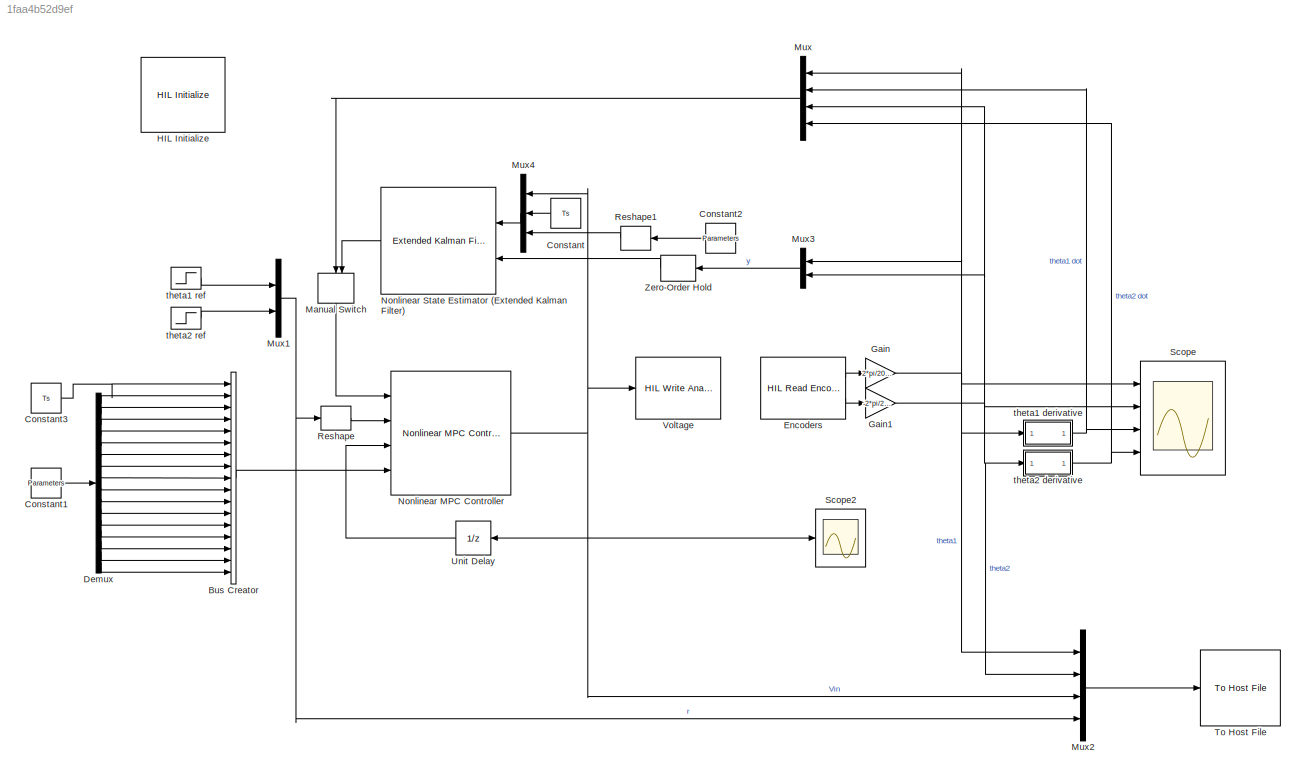
MODEL slx_1faa4b52d9ef
KIND model
CONFIG AbsTol = auto
CONFIG EnableMultiTasking = on
CONFIG FixedStep = 0.002
CONFIG MaxStep = auto
CONFIG MinStep = auto
CONFIG PostLoadFcn = qc_set_target_type(getConfigSet(bdroot, 'QUARC Default Target Configuration'));
CONFIG RelTol = 1e-3
CONFIG SampleTimeConstraint = Unconstrained
CONFIG Solver = ode1
CONFIG SolverName = ode1
CONFIG StartTime = 0.0
CONFIG StopTime = inf
BLOCK [BusCreator] Bus Creator
  DisplayOption = bar
  InheritFromInputs = on
  Inputs = 17
  NonVirtualBus = on
  OutDataTypeStr = Bus: customBusObject
  Ports = [17, 1]
BLOCK [Constant] Constant
  Value = Ts
BLOCK [Constant] Constant1
  Value = Parameters
BLOCK [Constant] Constant2
  Value = Parameters
BLOCK [Constant] Constant3
  Value = Ts
BLOCK [Demux] Demux
  DisplayOption = bar
  Outputs = 16
  Ports = [1, 16]
BLOCK [Reference] Encoders  REF=quarc_library/Data Acquisition/Generic/Timebases/HIL Read Encoder
Timebase
  AttributesFormatString = (%<object_name>)
  Ports = [0, 2]
  SourceBlock = quarc_library/Data Acquisition/Generic/Timebases/HIL Read Encoder\nTimebase
  SourceProductName = QUARC Targets
  SourceType = HIL Read Encoder Timebase
  UserDataPersistent = on
BLOCK [Gain] Gain
  Gain = 2*pi/2048
  OutDataTypeStr = Inherit: Inherit via internal rule
  ParamDataTypeStr = Inherit: Inherit via internal rule
  SaturateOnIntegerOverflow = off
BLOCK [Gain] Gain1
  Gain = -2*pi/2048
  OutDataTypeStr = Inherit: Inherit via internal rule
  ParamDataTypeStr = Inherit: Inherit via internal rule
  SaturateOnIntegerOverflow = off
BLOCK [Reference] HIL Initialize  REF=quarc_library/Data Acquisition/Generic/Configuration/HIL Initialize
  AttributesFormatString = %<object_name> (%<board_type>-%<board_number>)
  Ports = []
  Priority = -99
  SourceBlock = quarc_library/Data Acquisition/Generic/Configuration/HIL Initialize
  SourceProductName = QUARC Targets
  SourceType = HIL Initialize
  UserDataPersistent = on
BLOCK [ManualSwitch] Manual Switch
BLOCK [Mux] Mux
  DisplayOption = bar
  Ports = [4, 1]
BLOCK [Mux] Mux1
  DisplayOption = bar
  Inputs = 2
  Ports = [2, 1]
BLOCK [Mux] Mux2
  DisplayOption = bar
  Ports = [4, 1]
BLOCK [Mux] Mux3
  DisplayOption = bar
  Inputs = 2
  Ports = [2, 1]
BLOCK [Mux] Mux4
  DisplayOption = bar
  Inputs = 3
  Ports = [3, 1]
BLOCK [Reference] Nonlinear MPC Controller  REF=mpclib/Nonlinear MPC Controller  (lib defined in mdl_ae329e0e0455)
  Ports = [4, 1]
  SourceBlock = mpclib/Nonlinear MPC Controller
  SourceProductBaseCode = MP
  SourceProductName = Model Predictive Control Toolbox
  SourceType = NonlinearMPC
BLOCK [Reference] Nonlinear State Estimator (Extended Kalman Filter)  REF=sharedTrackingLibrary/Extended Kalman Filter
  Ports = [2, 1]
  SourceBlock = sharedTrackingLibrary/Extended Kalman Filter
  SourceProductBaseCode = DR
  SourceProductName = Automated Driving Toolbox
  SourceType = Extended Kalman Filter
BLOCK [Reshape] Reshape
  OutputDimensionality = Row vector (2-D)
  Ports = [1, 1]
BLOCK [Reshape] Reshape1
  OutputDimensionality = Column vector (2-D)
  Ports = [1, 1]
BLOCK [Scope] Scope
  Floating = off
  NumInputPorts = 4
  Ports = [4]
  ScopeSpecificationString = Simulink.scopes.TimeScopeBlockCfg('CurrentConfiguration', extmgr.ConfigurationSet(extmgr.Configuration('Core','General UI',true),extmgr.Configuration('Core','Source UI',true),extmgr.Configuration('Sources','WiredSimulink',true,'DataLoggingSaveFormat','StructureWithTime','DataLoggingDecimation','1','DataLoggingDecimateData',true,'DataLoggingVariableName','ScopeData1'),extmgr.Configuration('Visuals'...<+3707ch>
BLOCK [Scope] Scope2
  Floating = off
  NumInputPorts = 1
  Ports = [1]
  ScopeSpecificationString = Simulink.scopes.TimeScopeBlockCfg('CurrentConfiguration', extmgr.ConfigurationSet(extmgr.Configuration('Core','General UI',true),extmgr.Configuration('Core','Source UI',true),extmgr.Configuration('Sources','WiredSimulink',true,'DataLoggingSaveFormat','StructureWithTime','DataLoggingDecimation','1'),extmgr.Configuration('Visuals','Time Domain',true,'SerializedDisplays',{struct('MinYLimReal','-12.5'...<+1511ch>
BLOCK [Reference] To Host File  REF=quarc_library/Sinks/To Host/To Host File
  AttributesFormatString = %<final_file_name>
  Ports = [1]
  SourceBlock = quarc_library/Sinks/To Host/To Host File
  SourceProductName = QUARC Targets
  SourceType = To Host File
BLOCK [UnitDelay] Unit Delay
  HasFrameUpgradeWarning = on
  SampleTime = -1
BLOCK [Reference] Voltage  REF=quarc_library/Data Acquisition/Generic/Immediate I//O/HIL Write Analog
  AttributesFormatString = (%<object_name>)
  Ports = [1]
  SourceBlock = quarc_library/Data Acquisition/Generic/Immediate I//O/HIL Write Analog
  SourceProductName = QUARC Targets
  SourceType = HIL Write Analog
  UserDataPersistent = on
BLOCK [ZeroOrderHold] Zero-Order Hold
  SampleTime = Ts
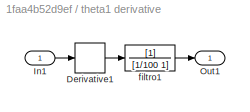
BLOCK [SubSystem] theta1 derivative
  Ports = [1, 1]
  RequestExecContextInheritance = off
  ShowPortLabels = none
BLOCK [Derivative] theta1 derivative/Derivative1
BLOCK [Inport] theta1 derivative/In1
  IconDisplay = Port number
BLOCK [Outport] theta1 derivative/Out1
  IconDisplay = Port number
BLOCK [TransferFcn] theta1 derivative/filtro1 
  Denominator = [1/100 1]
BLOCK [Step] theta1 ref
  After = yref(1)
  SampleTime = 0
  Time = 10
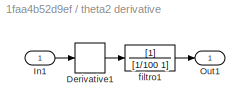
BLOCK [SubSystem] theta2 derivative
  Ports = [1, 1]
  RequestExecContextInheritance = off
  ShowPortLabels = none
BLOCK [Derivative] theta2 derivative/Derivative1
BLOCK [Inport] theta2 derivative/In1
  IconDisplay = Port number
BLOCK [Outport] theta2 derivative/Out1
  IconDisplay = Port number
BLOCK [TransferFcn] theta2 derivative/filtro1 
  Denominator = [1/100 1]
BLOCK [Step] theta2 ref
  After = yref(2)
  SampleTime = 0
  Time = 0
LINE Bus Creator:1 -> Nonlinear MPC Controller:4
LINE Constant1:1 -> Demux:1
LINE Constant2:1 -> Reshape1:1
LINE Constant3:1 -> Bus Creator:1
LINE Constant:1 -> Mux4:2
LINE Demux:1 -> Bus Creator:2
LINE Demux:10 -> Bus Creator:11
LINE Demux:11 -> Bus Creator:12
LINE Demux:12 -> Bus Creator:13
LINE Demux:13 -> Bus Creator:14
LINE Demux:14 -> Bus Creator:15
LINE Demux:15 -> Bus Creator:16
LINE Demux:16 -> Bus Creator:17
LINE Demux:2 -> Bus Creator:3
LINE Demux:3 -> Bus Creator:4
LINE Demux:4 -> Bus Creator:5
LINE Demux:5 -> Bus Creator:6
LINE Demux:6 -> Bus Creator:7
LINE Demux:7 -> Bus Creator:8
LINE Demux:8 -> Bus Creator:9
LINE Demux:9 -> Bus Creator:10
LINE Encoders:1 -> Gain:1
LINE Encoders:2 -> Gain1:1
NET Gain1:1 -> Mux2:2, Mux3:2, Mux:3, Scope:2, theta2 derivative:1
NET Gain:1 -> Mux2:1, Mux3:1, Mux:1, Scope:1, theta1 derivative:1
LINE Manual Switch:1 -> Nonlinear MPC Controller:1
NET Mux1:1 -> Mux2:4, Reshape:1
LINE Mux2:1 -> To Host File:1
LINE Mux3:1 -> Zero-Order Hold:1
LINE Mux4:1 -> Nonlinear State Estimator (Extended Kalman Filter):1
LINE Mux:1 -> Manual Switch:1
NET Nonlinear MPC Controller:1 -> Mux2:3, Mux4:1, Scope2:1, Unit Delay:1, Voltage:1
LINE Nonlinear State Estimator (Extended Kalman Filter):1 -> Manual Switch:2
LINE Reshape1:1 -> Mux4:3
LINE Reshape:1 -> Nonlinear MPC Controller:2
LINE Unit Delay:1 -> Nonlinear MPC Controller:3
LINE Zero-Order Hold:1 -> Nonlinear State Estimator (Extended Kalman Filter):2
LINE theta1 derivative/Derivative1:1 -> theta1 derivative/filtro1 :1
LINE theta1 derivative/In1:1 -> theta1 derivative/Derivative1:1
LINE theta1 derivative/filtro1 :1 -> theta1 derivative/Out1:1
NET theta1 derivative:1 -> Mux:2, Scope:3
LINE theta1 ref:1 -> Mux1:1
LINE theta2 derivative/Derivative1:1 -> theta2 derivative/filtro1 :1
LINE theta2 derivative/In1:1 -> theta2 derivative/Derivative1:1
LINE theta2 derivative/filtro1 :1 -> theta2 derivative/Out1:1
NET theta2 derivative:1 -> Mux:4, Scope:4
LINE theta2 ref:1 -> Mux1:2
note: NET lines group one-source signal fan-out (src -> all destinations, sorted); 1:1 wires keep LINE
